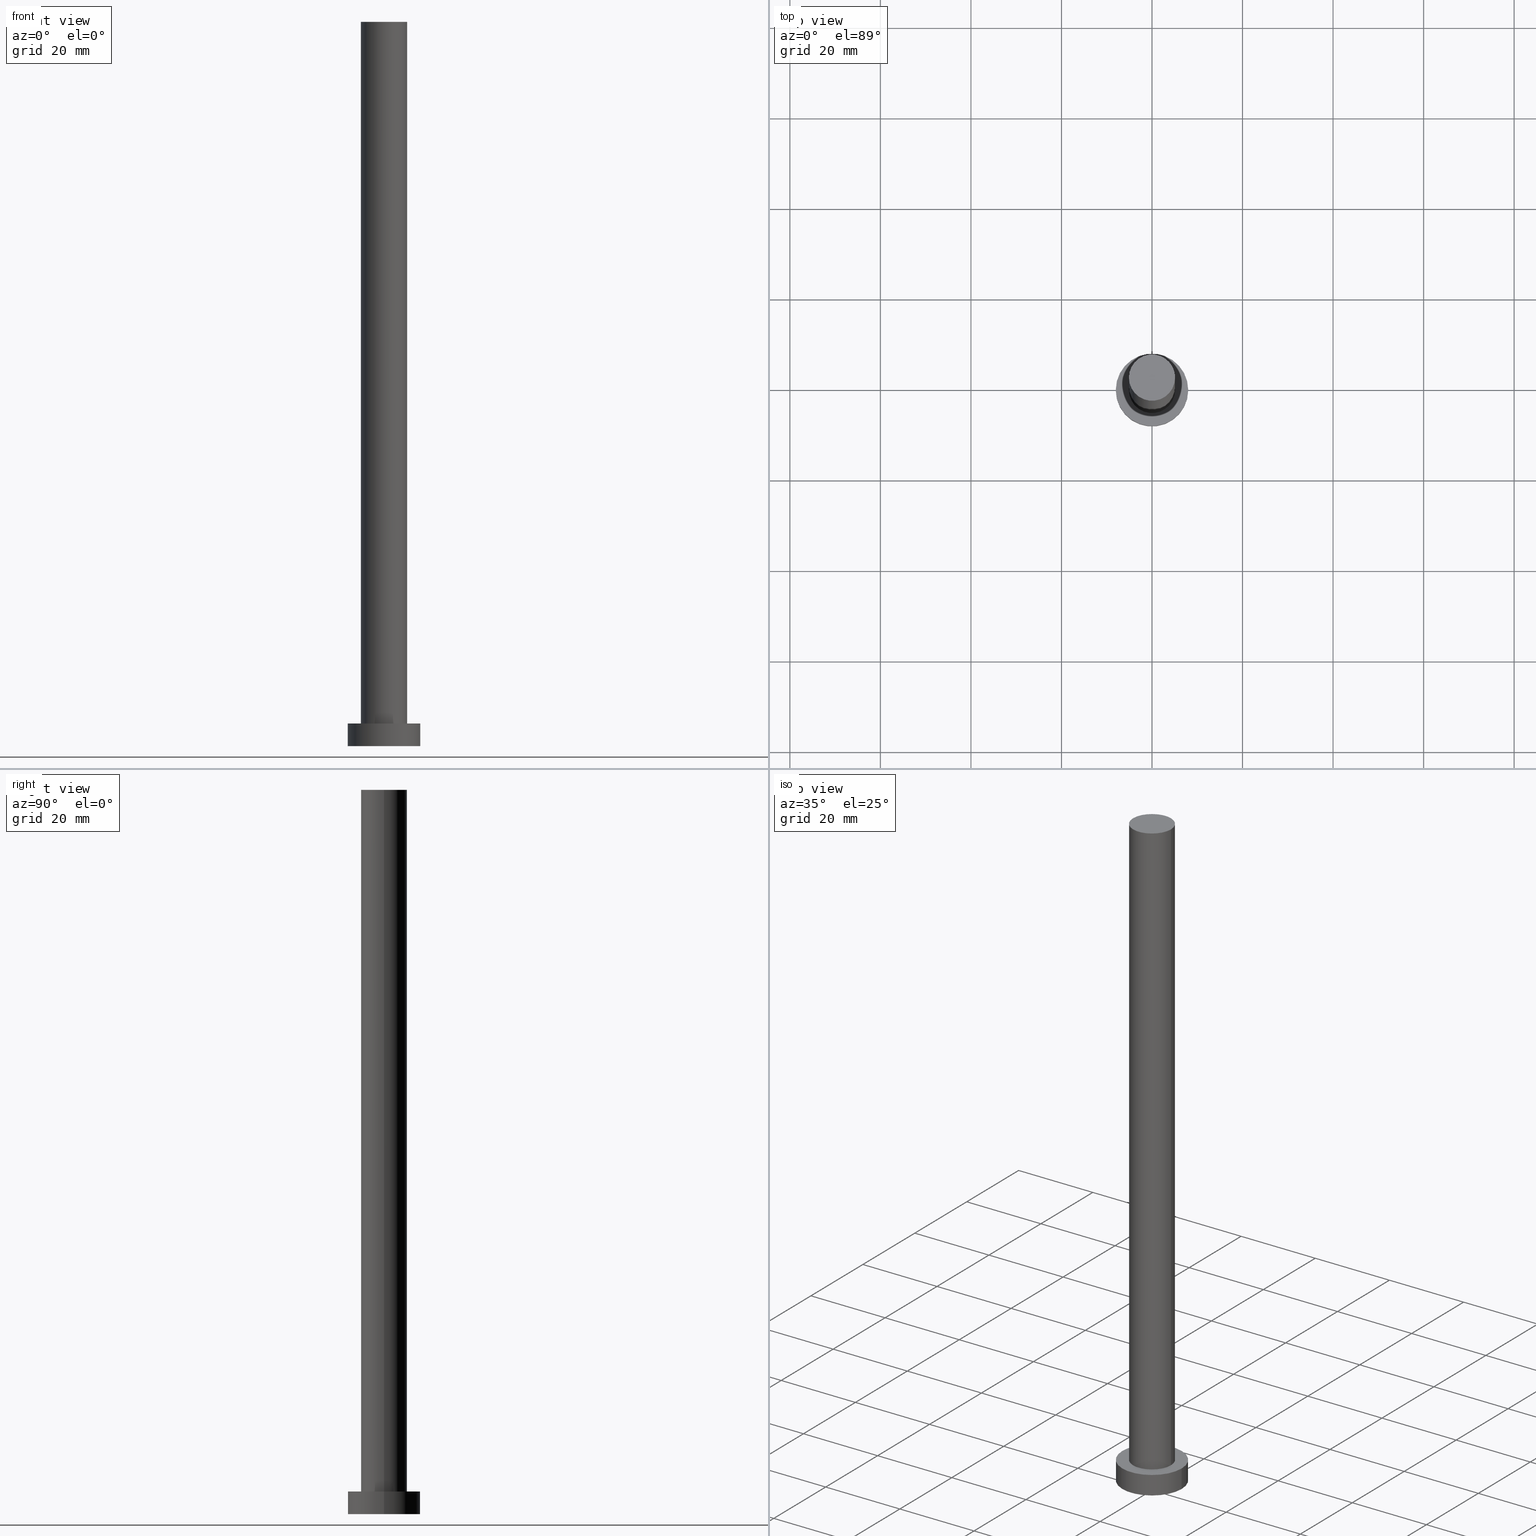
[diagram: canonical four-view strip — front | top / right | iso, engineering-drawing reading convention]
A machine part, canonical four-view strip (front | top / right | iso — engineering-drawing reading convention). The complete STEP part file that produces these views, byte-faithful:
ISO-10303-21;
HEADER;
FILE_DESCRIPTION (( 'STEP AP203' ),
    '1' );
FILE_NAME ('1d8d.STEP',
    '2023-02-13T09:57:25',
    ( '' ),
    ( '' ),
    'SwSTEP 2.0',
    'SolidWorks 2019',
    '' );
FILE_SCHEMA (( 'CONFIG_CONTROL_DESIGN' ));
ENDSEC;

DATA;
#1 = DIRECTION ( 'NONE',  ( -0.000000000000000000, -0.000000000000000000, -1.000000000000000000 ) ) ;
#2 = CARTESIAN_POINT ( 'NONE',  ( 5.100000000000001421, 6.245698675651502811E-16, 160.0000000000000000 ) ) ;
#3 = APPLICATION_CONTEXT ( 'configuration controlled 3d designs of mechanical parts and assemblies' ) ;
#4 = DIRECTION ( 'NONE',  ( 1.000000000000000000, 0.000000000000000000, 0.000000000000000000 ) ) ;
#5 = DIRECTION ( 'NONE',  ( 0.000000000000000000, 0.000000000000000000, 1.000000000000000000 ) ) ;
#6 = APPROVAL ( #201, 'NEUR�EN�' ) ;
#7 = CARTESIAN_POINT ( 'NONE',  ( 0.000000000000000000, 0.000000000000000000, 160.0000000000000000 ) ) ;
#8 = DATE_AND_TIME ( #152, #64 ) ;
#9 = FACE_OUTER_BOUND ( 'NONE', #52, .T. ) ;
#10 = AXIS2_PLACEMENT_3D ( 'NONE', #78, #214, #57 ) ;
#11 = CC_DESIGN_PERSON_AND_ORGANIZATION_ASSIGNMENT ( #229, #205, ( #216 ) ) ;
#12 = DIRECTION ( 'NONE',  ( 1.000000000000000000, 0.000000000000000000, 0.000000000000000000 ) ) ;
#13 = AXIS2_PLACEMENT_3D ( 'NONE', #116, #245, #55 ) ;
#14 = EDGE_LOOP ( 'NONE', ( #113, #178 ) ) ;
#15 = DIRECTION ( 'NONE',  ( 1.000000000000000000, 0.000000000000000000, 0.000000000000000000 ) ) ;
#16 = PERSON_AND_ORGANIZATION_ROLE ( 'classification_officer' ) ;
#17 = EDGE_CURVE ( 'NONE', #19, #59, #125, .T. ) ;
#18 = VERTEX_POINT ( 'NONE', #121 ) ;
#19 = VERTEX_POINT ( 'NONE', #21 ) ;
#20 = CC_DESIGN_SECURITY_CLASSIFICATION ( #222, ( #216 ) ) ;
#21 = CARTESIAN_POINT ( 'NONE',  ( -5.100000000000001421, 0.000000000000000000, 160.0000000000000000 ) ) ;
#22 = CARTESIAN_POINT ( 'NONE',  ( 0.000000000000000000, 0.000000000000000000, 160.0000000000000000 ) ) ;
#23 = CARTESIAN_POINT ( 'NONE',  ( 0.000000000000000000, 0.000000000000000000, 160.0000000000000000 ) ) ;
#24 = CARTESIAN_POINT ( 'NONE',  ( 0.000000000000000000, 0.000000000000000000, 0.000000000000000000 ) ) ;
#25 = DIRECTION ( 'NONE',  ( 0.000000000000000000, 0.000000000000000000, 1.000000000000000000 ) ) ;
#26 = PERSON ( 'NEUR�EN�', 'NEUR�EN�', 'NEUR�EN�', ('NEUR�EN�'), ('NEUR�EN�'), ('NEUR�EN�') ) ;
#27 = CARTESIAN_POINT ( 'NONE',  ( -8.000000000000000000, 0.000000000000000000, 0.000000000000000000 ) ) ;
#28 = AXIS2_PLACEMENT_3D ( 'NONE', #146, #196, #217 ) ;
#29 = AXIS2_PLACEMENT_3D ( 'NONE', #88, #164, #12 ) ;
#30 = APPROVAL_STATUS ( 'not_yet_approved' ) ;
#31 = ADVANCED_FACE ( 'NONE', ( #199 ), #122, .T. ) ;
#32 = PERSON_AND_ORGANIZATION ( #26, #76 ) ;
#33 = CC_DESIGN_APPROVAL ( #225, ( #216 ) ) ;
#34 = CALENDAR_DATE ( 2023, 13, 2 ) ;
#35 = VECTOR ( 'NONE', #237, 1000.000000000000000 ) ;
#36 = ORIENTED_EDGE ( 'NONE', *, *, #17, .F. ) ;
#37 = VERTEX_POINT ( 'NONE', #27 ) ;
#38 = APPROVAL ( #246, 'NEUR�EN�' ) ;
#39 = EDGE_LOOP ( 'NONE', ( #119, #157, #133, #140 ) ) ;
#40 = AXIS2_PLACEMENT_3D ( 'NONE', #22, #223, #184 ) ;
#41 = EDGE_LOOP ( 'NONE', ( #82, #236, #77, #215 ) ) ;
#42 = DIRECTION ( 'NONE',  ( 1.000000000000000000, 0.000000000000000000, -0.000000000000000000 ) ) ;
#43 = DIRECTION ( 'NONE',  ( -0.000000000000000000, -0.000000000000000000, -1.000000000000000000 ) ) ;
#44 = PLANE ( 'NONE',  #156 ) ;
#45 = DIRECTION ( 'NONE',  ( -1.000000000000000000, 0.000000000000000000, 0.000000000000000000 ) ) ;
#46 = CARTESIAN_POINT ( 'NONE',  ( 0.000000000000000000, 0.000000000000000000, 5.000000000000000000 ) ) ;
#47 = MECHANICAL_CONTEXT ( 'NONE', #79, 'mechanical' ) ;
#48 = AXIS2_PLACEMENT_3D ( 'NONE', #65, #87, #83 ) ;
#49 = APPROVAL_DATE_TIME ( #153, #6 ) ;
#50 = ADVANCED_FACE ( 'NONE', ( #85 ), #128, .T. ) ;
#51 =( NAMED_UNIT ( * ) PLANE_ANGLE_UNIT ( ) SI_UNIT ( $, .RADIAN. ) );
#52 = EDGE_LOOP ( 'NONE', ( #174, #193 ) ) ;
#53 = DATE_AND_TIME ( #203, #253 ) ;
#54 = ADVANCED_FACE ( 'NONE', ( #141 ), #195, .T. ) ;
#55 = DIRECTION ( 'NONE',  ( 1.000000000000000000, 0.000000000000000000, -0.000000000000000000 ) ) ;
#56 = CIRCLE ( 'NONE', #91, 5.100000000000001421 ) ;
#57 = DIRECTION ( 'NONE',  ( 1.000000000000000000, 0.000000000000000000, 0.000000000000000000 ) ) ;
#58 = ADVANCED_FACE ( 'NONE', ( #238 ), #44, .T. ) ;
#59 = VERTEX_POINT ( 'NONE', #90 ) ;
#60 = ORIENTED_EDGE ( 'NONE', *, *, #210, .T. ) ;
#61 = PRODUCT ( '1d8d', '1d8d', '', ( #47 ) ) ;
#62 = PLANE ( 'NONE',  #191 ) ;
#63 = AXIS2_PLACEMENT_3D ( 'NONE', #182, #69, #144 ) ;
#64 = LOCAL_TIME ( 10, 57, 25.00000000000000000, #94 ) ;
#65 = CARTESIAN_POINT ( 'NONE',  ( 0.000000000000000000, 0.000000000000000000, 5.000000000000000000 ) ) ;
#66 = CYLINDRICAL_SURFACE ( 'NONE', #63, 8.000000000000000000 ) ;
#67 = CARTESIAN_POINT ( 'NONE',  ( -5.100000000000001421, 0.000000000000000000, 5.000000000000000000 ) ) ;
#68 = CC_DESIGN_APPROVAL ( #38, ( #222 ) ) ;
#69 = DIRECTION ( 'NONE',  ( -0.000000000000000000, -0.000000000000000000, -1.000000000000000000 ) ) ;
#70 = DIRECTION ( 'NONE',  ( 0.000000000000000000, 0.000000000000000000, 1.000000000000000000 ) ) ;
#71 = CIRCLE ( 'NONE', #147, 8.000000000000000000 ) ;
#72 = COORDINATED_UNIVERSAL_TIME_OFFSET ( 1, 0, .AHEAD. ) ;
#73 = CARTESIAN_POINT ( 'NONE',  ( 0.000000000000000000, 0.000000000000000000, 0.000000000000000000 ) ) ;
#74 = APPROVAL_ROLE ( '' ) ;
#75 = PERSON_AND_ORGANIZATION ( #26, #76 ) ;
#76 = ORGANIZATION ( 'NEUR�EN�', 'NEUR�EN�', '' ) ;
#77 = ORIENTED_EDGE ( 'NONE', *, *, #194, .T. ) ;
#78 = CARTESIAN_POINT ( 'NONE',  ( 0.000000000000000000, 0.000000000000000000, 160.0000000000000000 ) ) ;
#79 = APPLICATION_CONTEXT ( 'configuration controlled 3d designs of mechanical parts and assemblies' ) ;
#80 = EDGE_LOOP ( 'NONE', ( #175, #209 ) ) ;
#81 = AXIS2_PLACEMENT_3D ( 'NONE', #224, #219, #197 ) ;
#82 = ORIENTED_EDGE ( 'NONE', *, *, #207, .F. ) ;
#83 = DIRECTION ( 'NONE',  ( 1.000000000000000000, 0.000000000000000000, 0.000000000000000000 ) ) ;
#84 = VECTOR ( 'NONE', #43, 1000.000000000000000 ) ;
#85 = FACE_OUTER_BOUND ( 'NONE', #41, .T. ) ;
#86 = UNCERTAINTY_MEASURE_WITH_UNIT (LENGTH_MEASURE( 1.000000000000000082E-05 ), #92, 'distance_accuracy_value', 'NONE');
#87 = DIRECTION ( 'NONE',  ( 0.000000000000000000, 0.000000000000000000, 1.000000000000000000 ) ) ;
#88 = CARTESIAN_POINT ( 'NONE',  ( 0.000000000000000000, 0.000000000000000000, 5.000000000000000000 ) ) ;
#89 = CC_DESIGN_PERSON_AND_ORGANIZATION_ASSIGNMENT ( #110, #115, ( #61 ) ) ;
#90 = CARTESIAN_POINT ( 'NONE',  ( 5.100000000000001421, 6.245698675651502811E-16, 160.0000000000000000 ) ) ;
#91 = AXIS2_PLACEMENT_3D ( 'NONE', #7, #244, #15 ) ;
#92 =( LENGTH_UNIT ( ) NAMED_UNIT ( * ) SI_UNIT ( .MILLI., .METRE. ) );
#93 = DATE_AND_TIME ( #247, #242 ) ;
#94 = COORDINATED_UNIVERSAL_TIME_OFFSET ( 1, 0, .AHEAD. ) ;
#95 = LOCAL_TIME ( 10, 57, 25.00000000000000000, #97 ) ;
#96 = SHAPE_DEFINITION_REPRESENTATION ( #103, #169 ) ;
#97 = COORDINATED_UNIVERSAL_TIME_OFFSET ( 1, 0, .AHEAD. ) ;
#98 = VERTEX_POINT ( 'NONE', #67 ) ;
#99 = CIRCLE ( 'NONE', #81, 8.000000000000000000 ) ;
#100 = EDGE_CURVE ( 'NONE', #98, #18, #249, .T. ) ;
#101 = ORIENTED_EDGE ( 'NONE', *, *, #100, .T. ) ;
#102 = LINE ( 'NONE', #180, #84 ) ;
#103 = PRODUCT_DEFINITION_SHAPE ( 'NONE', 'NONE',  #240 ) ;
#104 = DIRECTION ( 'NONE',  ( -0.000000000000000000, -0.000000000000000000, -1.000000000000000000 ) ) ;
#105 = EDGE_CURVE ( 'NONE', #18, #98, #161, .T. ) ;
#106 = DIRECTION ( 'NONE',  ( 0.000000000000000000, 0.000000000000000000, 1.000000000000000000 ) ) ;
#107 = DIRECTION ( 'NONE',  ( 1.000000000000000000, 0.000000000000000000, -0.000000000000000000 ) ) ;
#108 = DIRECTION ( 'NONE',  ( -1.000000000000000000, 0.000000000000000000, 0.000000000000000000 ) ) ;
#109 = EDGE_CURVE ( 'NONE', #159, #254, #130, .T. ) ;
#110 = PERSON_AND_ORGANIZATION ( #26, #76 ) ;
#111 = APPROVAL_DATE_TIME ( #53, #225 ) ;
#112 = PLANE ( 'NONE',  #13 ) ;
#113 = ORIENTED_EDGE ( 'NONE', *, *, #100, .F. ) ;
#114 = ADVANCED_FACE ( 'NONE', ( #165, #200 ), #62, .T. ) ;
#115 = PERSON_AND_ORGANIZATION_ROLE ( 'design_owner' ) ;
#116 = CARTESIAN_POINT ( 'NONE',  ( 0.000000000000000000, 0.000000000000000000, 0.000000000000000000 ) ) ;
#117 = VECTOR ( 'NONE', #163, 1000.000000000000000 ) ;
#118 = ORIENTED_EDGE ( 'NONE', *, *, #124, .T. ) ;
#119 = ORIENTED_EDGE ( 'NONE', *, *, #248, .F. ) ;
#120 = AXIS2_PLACEMENT_3D ( 'NONE', #23, #1, #45 ) ;
#121 = CARTESIAN_POINT ( 'NONE',  ( 5.100000000000001421, 6.245698675651502811E-16, 5.000000000000000000 ) ) ;
#122 = CYLINDRICAL_SURFACE ( 'NONE', #120, 5.100000000000001421 ) ;
#123 = LINE ( 'NONE', #149, #227 ) ;
#124 = EDGE_CURVE ( 'NONE', #19, #98, #102, .T. ) ;
#125 = CIRCLE ( 'NONE', #10, 5.100000000000001421 ) ;
#126 = DIRECTION ( 'NONE',  ( 1.000000000000000000, 0.000000000000000000, 0.000000000000000000 ) ) ;
#127 =( GEOMETRIC_REPRESENTATION_CONTEXT ( 3 ) GLOBAL_UNCERTAINTY_ASSIGNED_CONTEXT ( ( #86 ) ) GLOBAL_UNIT_ASSIGNED_CONTEXT ( ( #92, #51, #206 ) ) REPRESENTATION_CONTEXT ( 'NONE', 'WORKASPACE' ) );
#128 = CYLINDRICAL_SURFACE ( 'NONE', #145, 8.000000000000000000 ) ;
#129 = CC_DESIGN_PERSON_AND_ORGANIZATION_ASSIGNMENT ( #233, #186, ( #216 ) ) ;
#130 = LINE ( 'NONE', #239, #35 ) ;
#131 = PERSON_AND_ORGANIZATION_ROLE ( 'creator' ) ;
#132 = DATE_TIME_ROLE ( 'creation_date' ) ;
#133 = ORIENTED_EDGE ( 'NONE', *, *, #105, .T. ) ;
#134 = SECURITY_CLASSIFICATION_LEVEL ( 'unclassified' ) ;
#135 = APPROVAL_PERSON_ORGANIZATION ( #75, #38, #228 ) ;
#136 = COORDINATED_UNIVERSAL_TIME_OFFSET ( 1, 0, .AHEAD. ) ;
#137 = CC_DESIGN_DATE_AND_TIME_ASSIGNMENT ( #190, #250, ( #222 ) ) ;
#138 = LOCAL_TIME ( 10, 57, 25.00000000000000000, #150 ) ;
#139 = ORIENTED_EDGE ( 'NONE', *, *, #168, .T. ) ;
#140 = ORIENTED_EDGE ( 'NONE', *, *, #124, .F. ) ;
#141 = FACE_OUTER_BOUND ( 'NONE', #177, .T. ) ;
#142 = AXIS2_PLACEMENT_3D ( 'NONE', #73, #70, #166 ) ;
#143 = CARTESIAN_POINT ( 'NONE',  ( 8.000000000000000000, 9.797174393178825657E-16, 5.000000000000000000 ) ) ;
#144 = DIRECTION ( 'NONE',  ( -1.000000000000000000, 0.000000000000000000, 0.000000000000000000 ) ) ;
#145 = AXIS2_PLACEMENT_3D ( 'NONE', #162, #160, #108 ) ;
#146 = CARTESIAN_POINT ( 'NONE',  ( 0.000000000000000000, 0.000000000000000000, 5.000000000000000000 ) ) ;
#147 = AXIS2_PLACEMENT_3D ( 'NONE', #24, #106, #4 ) ;
#148 = CC_DESIGN_DATE_AND_TIME_ASSIGNMENT ( #93, #132, ( #240 ) ) ;
#149 = CARTESIAN_POINT ( 'NONE',  ( -8.000000000000000000, 0.000000000000000000, 5.000000000000000000 ) ) ;
#150 = COORDINATED_UNIVERSAL_TIME_OFFSET ( 1, 0, .AHEAD. ) ;
#151 = CC_DESIGN_APPROVAL ( #6, ( #240 ) ) ;
#152 = CALENDAR_DATE ( 2023, 13, 2 ) ;
#153 = DATE_AND_TIME ( #34, #138 ) ;
#154 = ORIENTED_EDGE ( 'NONE', *, *, #220, .F. ) ;
#155 = PERSON_AND_ORGANIZATION ( #26, #76 ) ;
#156 = AXIS2_PLACEMENT_3D ( 'NONE', #241, #25, #107 ) ;
#157 = ORIENTED_EDGE ( 'NONE', *, *, #176, .T. ) ;
#158 = ORIENTED_EDGE ( 'NONE', *, *, #17, .T. ) ;
#159 = VERTEX_POINT ( 'NONE', #143 ) ;
#160 = DIRECTION ( 'NONE',  ( -0.000000000000000000, -0.000000000000000000, -1.000000000000000000 ) ) ;
#161 = CIRCLE ( 'NONE', #48, 5.100000000000001421 ) ;
#162 = CARTESIAN_POINT ( 'NONE',  ( 0.000000000000000000, 0.000000000000000000, 5.000000000000000000 ) ) ;
#163 = DIRECTION ( 'NONE',  ( -0.000000000000000000, -0.000000000000000000, -1.000000000000000000 ) ) ;
#164 = DIRECTION ( 'NONE',  ( 0.000000000000000000, 0.000000000000000000, 1.000000000000000000 ) ) ;
#165 = FACE_BOUND ( 'NONE', #14, .T. ) ;
#166 = DIRECTION ( 'NONE',  ( 1.000000000000000000, 0.000000000000000000, 0.000000000000000000 ) ) ;
#167 = PERSON_AND_ORGANIZATION ( #26, #76 ) ;
#168 = EDGE_CURVE ( 'NONE', #230, #37, #123, .T. ) ;
#169 = ADVANCED_BREP_SHAPE_REPRESENTATION ( '1d8d', ( #212, #142 ), #127 ) ;
#170 = CARTESIAN_POINT ( 'NONE',  ( -8.000000000000000000, 0.000000000000000000, 5.000000000000000000 ) ) ;
#171 = CC_DESIGN_PERSON_AND_ORGANIZATION_ASSIGNMENT ( #155, #131, ( #240 ) ) ;
#172 = CALENDAR_DATE ( 2023, 13, 2 ) ;
#173 = APPROVAL_PERSON_ORGANIZATION ( #185, #6, #74 ) ;
#174 = ORIENTED_EDGE ( 'NONE', *, *, #210, .F. ) ;
#175 = ORIENTED_EDGE ( 'NONE', *, *, #220, .T. ) ;
#176 = EDGE_CURVE ( 'NONE', #59, #18, #181, .T. ) ;
#177 = EDGE_LOOP ( 'NONE', ( #252, #36, #118, #101 ) ) ;
#178 = ORIENTED_EDGE ( 'NONE', *, *, #105, .F. ) ;
#179 = CC_DESIGN_PERSON_AND_ORGANIZATION_ASSIGNMENT ( #32, #16, ( #222 ) ) ;
#180 = CARTESIAN_POINT ( 'NONE',  ( -5.100000000000001421, 0.000000000000000000, 160.0000000000000000 ) ) ;
#181 = LINE ( 'NONE', #2, #117 ) ;
#182 = CARTESIAN_POINT ( 'NONE',  ( 0.000000000000000000, 0.000000000000000000, 5.000000000000000000 ) ) ;
#183 = CARTESIAN_POINT ( 'NONE',  ( 0.000000000000000000, 0.000000000000000000, 0.000000000000000000 ) ) ;
#184 = DIRECTION ( 'NONE',  ( -1.000000000000000000, 0.000000000000000000, 0.000000000000000000 ) ) ;
#185 = PERSON_AND_ORGANIZATION ( #26, #76 ) ;
#186 = PERSON_AND_ORGANIZATION_ROLE ( 'creator' ) ;
#187 = CARTESIAN_POINT ( 'NONE',  ( 8.000000000000000000, 9.797174393178825657E-16, 0.000000000000000000 ) ) ;
#188 = AXIS2_PLACEMENT_3D ( 'NONE', #183, #5, #126 ) ;
#189 = APPLICATION_PROTOCOL_DEFINITION ( 'international standard', 'config_control_design', 1994, #3 ) ;
#190 = DATE_AND_TIME ( #172, #95 ) ;
#191 = AXIS2_PLACEMENT_3D ( 'NONE', #46, #218, #42 ) ;
#192 = APPROVAL_PERSON_ORGANIZATION ( #167, #225, #231 ) ;
#193 = ORIENTED_EDGE ( 'NONE', *, *, #194, .F. ) ;
#194 = EDGE_CURVE ( 'NONE', #254, #37, #208, .T. ) ;
#195 = CYLINDRICAL_SURFACE ( 'NONE', #40, 5.100000000000001421 ) ;
#196 = DIRECTION ( 'NONE',  ( 0.000000000000000000, 0.000000000000000000, 1.000000000000000000 ) ) ;
#197 = DIRECTION ( 'NONE',  ( 1.000000000000000000, 0.000000000000000000, 0.000000000000000000 ) ) ;
#198 = PRODUCT_RELATED_PRODUCT_CATEGORY ( 'detail', '', ( #61 ) ) ;
#199 = FACE_OUTER_BOUND ( 'NONE', #39, .T. ) ;
#200 = FACE_OUTER_BOUND ( 'NONE', #80, .T. ) ;
#201 = APPROVAL_STATUS ( 'not_yet_approved' ) ;
#202 = ADVANCED_FACE ( 'NONE', ( #243 ), #66, .T. ) ;
#203 = CALENDAR_DATE ( 2023, 13, 2 ) ;
#204 = APPROVAL_DATE_TIME ( #8, #38 ) ;
#205 = PERSON_AND_ORGANIZATION_ROLE ( 'design_supplier' ) ;
#206 =( NAMED_UNIT ( * ) SI_UNIT ( $, .STERADIAN. ) SOLID_ANGLE_UNIT ( ) );
#207 = EDGE_CURVE ( 'NONE', #159, #230, #99, .T. ) ;
#208 = CIRCLE ( 'NONE', #188, 8.000000000000000000 ) ;
#209 = ORIENTED_EDGE ( 'NONE', *, *, #207, .T. ) ;
#210 = EDGE_CURVE ( 'NONE', #37, #254, #71, .T. ) ;
#211 = CIRCLE ( 'NONE', #29, 8.000000000000000000 ) ;
#212 = MANIFOLD_SOLID_BREP ( 'P�idat vysunut�m3', #232 ) ;
#213 = ORIENTED_EDGE ( 'NONE', *, *, #248, .T. ) ;
#214 = DIRECTION ( 'NONE',  ( 0.000000000000000000, 0.000000000000000000, 1.000000000000000000 ) ) ;
#215 = ORIENTED_EDGE ( 'NONE', *, *, #168, .F. ) ;
#216 = PRODUCT_DEFINITION_FORMATION_WITH_SPECIFIED_SOURCE ( 'LIBOVOLN�', '', #61, .NOT_KNOWN. ) ;
#217 = DIRECTION ( 'NONE',  ( 1.000000000000000000, 0.000000000000000000, 0.000000000000000000 ) ) ;
#218 = DIRECTION ( 'NONE',  ( 0.000000000000000000, 0.000000000000000000, 1.000000000000000000 ) ) ;
#219 = DIRECTION ( 'NONE',  ( 0.000000000000000000, 0.000000000000000000, 1.000000000000000000 ) ) ;
#220 = EDGE_CURVE ( 'NONE', #230, #159, #211, .T. ) ;
#221 = DESIGN_CONTEXT ( 'detailed design', #3, 'design' ) ;
#222 = SECURITY_CLASSIFICATION ( '', '', #134 ) ;
#223 = DIRECTION ( 'NONE',  ( -0.000000000000000000, -0.000000000000000000, -1.000000000000000000 ) ) ;
#224 = CARTESIAN_POINT ( 'NONE',  ( 0.000000000000000000, 0.000000000000000000, 5.000000000000000000 ) ) ;
#225 = APPROVAL ( #30, 'NEUR�EN�' ) ;
#226 = APPLICATION_PROTOCOL_DEFINITION ( 'international standard', 'config_control_design', 1994, #79 ) ;
#227 = VECTOR ( 'NONE', #104, 1000.000000000000000 ) ;
#228 = APPROVAL_ROLE ( '' ) ;
#229 = PERSON_AND_ORGANIZATION ( #26, #76 ) ;
#230 = VERTEX_POINT ( 'NONE', #170 ) ;
#231 = APPROVAL_ROLE ( '' ) ;
#232 = CLOSED_SHELL ( 'NONE', ( #31, #50, #202, #114, #234, #54, #58 ) ) ;
#233 = PERSON_AND_ORGANIZATION ( #26, #76 ) ;
#234 = ADVANCED_FACE ( 'NONE', ( #9 ), #112, .F. ) ;
#235 = ORIENTED_EDGE ( 'NONE', *, *, #109, .F. ) ;
#236 = ORIENTED_EDGE ( 'NONE', *, *, #109, .T. ) ;
#237 = DIRECTION ( 'NONE',  ( -0.000000000000000000, -0.000000000000000000, -1.000000000000000000 ) ) ;
#238 = FACE_OUTER_BOUND ( 'NONE', #255, .T. ) ;
#239 = CARTESIAN_POINT ( 'NONE',  ( 8.000000000000000000, 9.797174393178825657E-16, 5.000000000000000000 ) ) ;
#240 = PRODUCT_DEFINITION ( 'NEZN�M�', '', #216, #221 ) ;
#241 = CARTESIAN_POINT ( 'NONE',  ( 0.000000000000000000, 0.000000000000000000, 160.0000000000000000 ) ) ;
#242 = LOCAL_TIME ( 10, 57, 25.00000000000000000, #136 ) ;
#243 = FACE_OUTER_BOUND ( 'NONE', #251, .T. ) ;
#244 = DIRECTION ( 'NONE',  ( 0.000000000000000000, 0.000000000000000000, 1.000000000000000000 ) ) ;
#245 = DIRECTION ( 'NONE',  ( 0.000000000000000000, 0.000000000000000000, 1.000000000000000000 ) ) ;
#246 = APPROVAL_STATUS ( 'not_yet_approved' ) ;
#247 = CALENDAR_DATE ( 2023, 13, 2 ) ;
#248 = EDGE_CURVE ( 'NONE', #59, #19, #56, .T. ) ;
#249 = CIRCLE ( 'NONE', #28, 5.100000000000001421 ) ;
#250 = DATE_TIME_ROLE ( 'classification_date' ) ;
#251 = EDGE_LOOP ( 'NONE', ( #235, #154, #139, #60 ) ) ;
#252 = ORIENTED_EDGE ( 'NONE', *, *, #176, .F. ) ;
#253 = LOCAL_TIME ( 10, 57, 25.00000000000000000, #72 ) ;
#254 = VERTEX_POINT ( 'NONE', #187 ) ;
#255 = EDGE_LOOP ( 'NONE', ( #158, #213 ) ) ;
ENDSEC;
END-ISO-10303-21;
